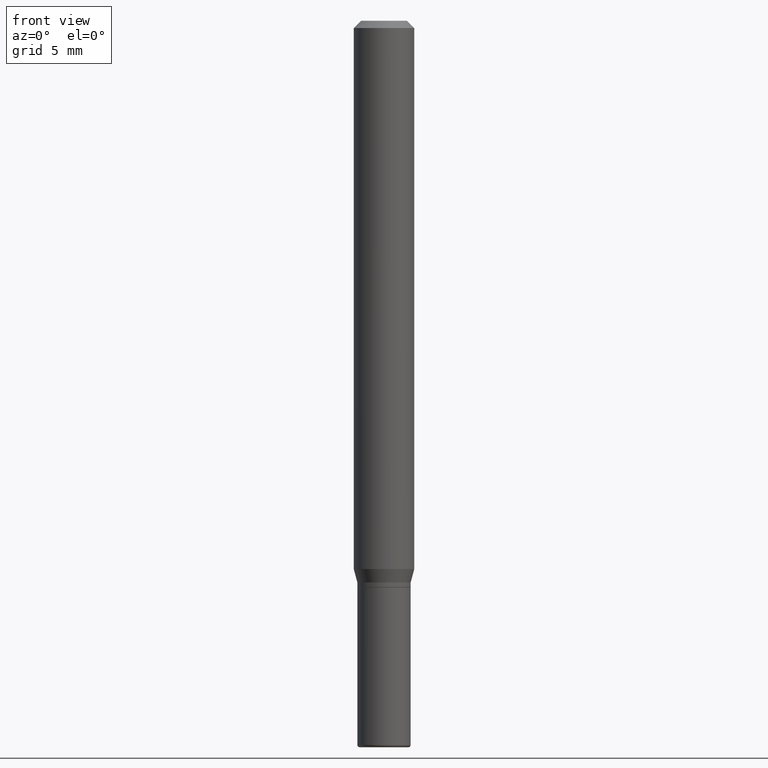
[diagram: clean part render]
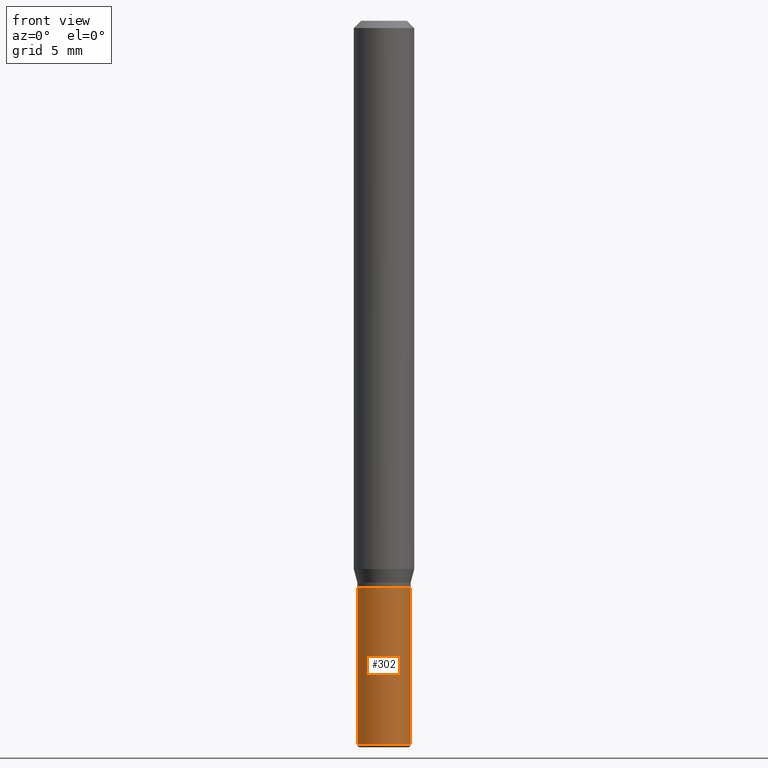
[diagram: same view with one face highlighted and labeled with its STEP entity id]
A machine part, front view. The second image highlights one B-rep face of the part: STEP entity #302.
In plain terms, the highlighted cylindrical surface (edge-blend (fillet) strip) has radius 1.397 mm, axis along (-0, 0, 1).
Its self-contained STEP definition (entity closure, byte-faithful):
#3 = CARTESIAN_POINT ( 'NONE',  ( -0.05500000000000009742, 3.907985046680557945E-16, -2.705414299640202916E-30 ) ) ;
#8 = DIRECTION ( 'NONE',  ( -2.445468806185136597E-29, 3.491481338843145583E-15, 1.000000000000000000 ) ) ;
#36 = VERTEX_POINT ( 'NONE', #37 ) ;
#37 = CARTESIAN_POINT ( 'NONE',  ( 0.05500000000000018069, -5.603827548843249703E-15, -1.495000000000000107 ) ) ;
#56 = CARTESIAN_POINT ( 'NONE',  ( 3.655975865246779122E-29, -5.219764601570503141E-15, -1.495000000000000107 ) ) ;
#75 = DIRECTION ( 'NONE',  ( 1.000000000000000000, -6.982962677686262766E-15, 0.000000000000000000 ) ) ;
#84 = DIRECTION ( 'NONE',  ( -2.445468806185136877E-29, 3.491481338843145188E-15, 1.000000000000000000 ) ) ;
#85 = LINE ( 'NONE', #3, #469 ) ;
#101 = CARTESIAN_POINT ( 'NONE',  ( -0.05500000000000018069, -4.261600379340434577E-15, -1.495000000000000107 ) ) ;
#108 = AXIS2_PLACEMENT_3D ( 'NONE', #332, #166, #482 ) ;
#117 = AXIS2_PLACEMENT_3D ( 'NONE', #367, #513, #75 ) ;
#122 = EDGE_LOOP ( 'NONE', ( #466, #203, #509, #470 ) ) ;
#124 = CARTESIAN_POINT ( 'NONE',  ( 0.05500000000000009742, -3.840629472727453298E-16, 2.681897226687769380E-30 ) ) ;
#139 = DIRECTION ( 'NONE',  ( 1.000000000000000000, -6.982962677686274599E-15, 0.000000000000000000 ) ) ;
#150 = CARTESIAN_POINT ( 'NONE',  ( -0.05500000000000000028, -4.261600379340436155E-15, -1.170000000000000151 ) ) ;
#152 = EDGE_CURVE ( 'NONE', #484, #36, #294, .T. ) ;
#166 = DIRECTION ( 'NONE',  ( -2.445468806185136597E-29, 3.491481338843145583E-15, 1.000000000000000000 ) ) ;
#168 = FACE_OUTER_BOUND ( 'NONE', #122, .T. ) ;
#180 = CIRCLE ( 'NONE', #117, 0.05500000000000000028 ) ;
#203 = ORIENTED_EDGE ( 'NONE', *, *, #152, .T. ) ;
#207 = VERTEX_POINT ( 'NONE', #276 ) ;
#219 = EDGE_CURVE ( 'NONE', #36, #207, #439, .T. ) ;
#248 = VERTEX_POINT ( 'NONE', #150 ) ;
#276 = CARTESIAN_POINT ( 'NONE',  ( 0.05500000000000000028, -4.469096113719225052E-15, -1.170000000000000151 ) ) ;
#278 = EDGE_CURVE ( 'NONE', #484, #248, #85, .T. ) ;
#294 = CIRCLE ( 'NONE', #518, 0.05500000000000018069 ) ;
#302 = ADVANCED_FACE ( 'NONE', ( #168 ), #404, .T. ) ;
#332 = CARTESIAN_POINT ( 'NONE',  ( 0.000000000000000000, 0.000000000000000000, 0.000000000000000000 ) ) ;
#367 = CARTESIAN_POINT ( 'NONE',  ( 2.861198503236610065E-29, -4.085033166446480067E-15, -1.170000000000000151 ) ) ;
#404 = CYLINDRICAL_SURFACE ( 'NONE', #108, 0.05500000000000009742 ) ;
#423 = EDGE_CURVE ( 'NONE', #248, #207, #180, .T. ) ;
#439 = LINE ( 'NONE', #124, #495 ) ;
#442 = DIRECTION ( 'NONE',  ( -2.445468806185136877E-29, 3.491481338843145188E-15, 1.000000000000000000 ) ) ;
#466 = ORIENTED_EDGE ( 'NONE', *, *, #278, .F. ) ;
#469 = VECTOR ( 'NONE', #442, 39.37007874015748143 ) ;
#470 = ORIENTED_EDGE ( 'NONE', *, *, #423, .F. ) ;
#482 = DIRECTION ( 'NONE',  ( 1.000000000000000000, -6.982962677686266711E-15, 4.876176775795935793E-29 ) ) ;
#484 = VERTEX_POINT ( 'NONE', #101 ) ;
#495 = VECTOR ( 'NONE', #84, 39.37007874015748143 ) ;
#509 = ORIENTED_EDGE ( 'NONE', *, *, #219, .T. ) ;
#513 = DIRECTION ( 'NONE',  ( -2.445468806185136597E-29, 3.491481338843145583E-15, 1.000000000000000000 ) ) ;
#518 = AXIS2_PLACEMENT_3D ( 'NONE', #56, #8, #139 ) ;